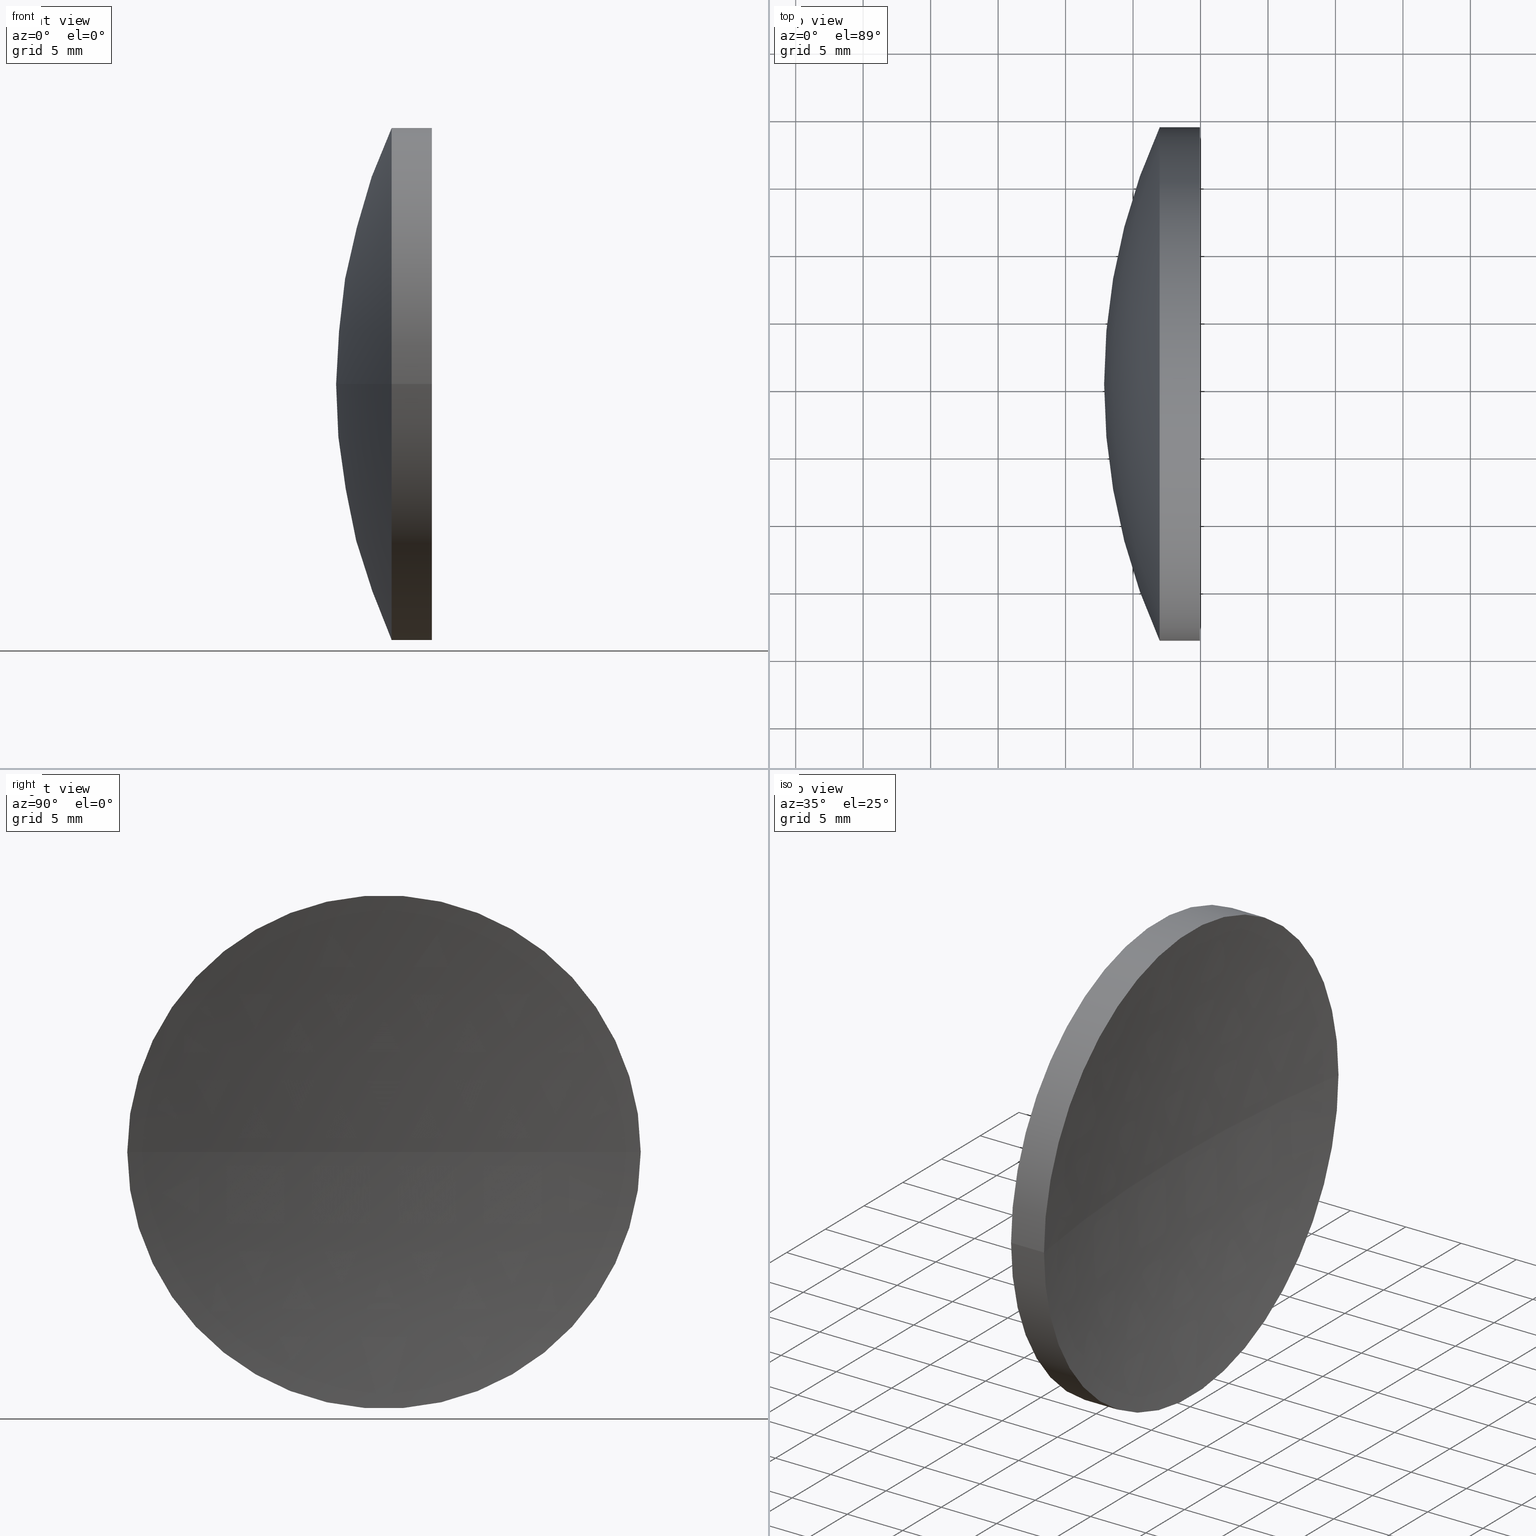
[diagram: canonical four-view strip — front | top / right | iso, engineering-drawing reading convention]
A machine part, canonical four-view strip (front | top / right | iso — engineering-drawing reading convention). The complete STEP part file that produces these views, byte-faithful:
ISO-10303-21;
HEADER;
FILE_DESCRIPTION (( 'STEP AP214' ),
    '1' );
FILE_NAME ('150015.STEP',
    '2019-07-04T07:50:48',
    ( '' ),
    ( '' ),
    'SwSTEP 2.0',
    'SolidWorks 2016',
    '' );
FILE_SCHEMA (( 'AUTOMOTIVE_DESIGN' ));
ENDSEC;

DATA;
#1 = PRODUCT ( '150015', '150015', '', ( #158 ) ) ;
#2 = CARTESIAN_POINT ( 'NONE',  ( 249.9554213155559500, 65.21684047094143500, 0.0000000000000000000 ) ) ;
#3 = AXIS2_PLACEMENT_3D ( 'NONE', #134, #34, #135 ) ;
#4 = DIRECTION ( 'NONE',  ( 8.496118506040342700E-032, -1.224646799147353200E-016, 1.000000000000000000 ) ) ;
#5 = EDGE_LOOP ( 'NONE', ( #130, #143, #44 ) ) ;
#6 = DIRECTION ( 'NONE',  ( -1.000000000000000000, -6.937607244762875000E-016, -0.0000000000000000000 ) ) ;
#7 = DIRECTION ( 'NONE',  ( -1.000000000000000000, -6.937607244762875000E-016, -0.0000000000000000000 ) ) ;
#8 = CARTESIAN_POINT ( 'NONE',  ( 168.8554213155557900, 65.21684047094032600, 0.0000000000000000000 ) ) ;
#9 = SURFACE_STYLE_FILL_AREA ( #156 ) ;
#10 = EDGE_CURVE ( 'NONE', #68, #155, #79, .T. ) ;
#11 =( NAMED_UNIT ( * ) SI_UNIT ( $, .STERADIAN. ) SOLID_ANGLE_UNIT ( ) );
#12 = ORIENTED_EDGE ( 'NONE', *, *, #160, .T. ) ;
#13 = DIRECTION ( 'NONE',  ( 1.000000000000000000, 0.0000000000000000000, 0.0000000000000000000 ) ) ;
#14 = VECTOR ( 'NONE', #106, 1000.000000000000000 ) ;
#15 = AXIS2_PLACEMENT_3D ( 'NONE', #80, #154, #108 ) ;
#16 = FACE_OUTER_BOUND ( 'NONE', #124, .T. ) ;
#17 = AXIS2_PLACEMENT_3D ( 'NONE', #104, #180, #55 ) ;
#18 = CARTESIAN_POINT ( 'NONE',  ( 129.9541739262057300, 65.21684047094034000, 0.0000000000000000000 ) ) ;
#19 = CLOSED_SHELL ( 'NONE', ( #63, #36, #38, #123, #65, #49 ) ) ;
#20 = FILL_AREA_STYLE_COLOUR ( '', #76 ) ;
#21 =( NAMED_UNIT ( * ) SI_UNIT ( $, .STERADIAN. ) SOLID_ANGLE_UNIT ( ) );
#22 = CIRCLE ( 'NONE', #62, 46.00000000000000000 ) ;
#23 = SURFACE_STYLE_USAGE ( .BOTH. , #119 ) ;
#24 =( NAMED_UNIT ( * ) PLANE_ANGLE_UNIT ( ) SI_UNIT ( $, .RADIAN. ) );
#25 = EDGE_LOOP ( 'NONE', ( #112, #162, #60 ) ) ;
#26 = APPLICATION_PROTOCOL_DEFINITION ( 'draft international standard', 'automotive_design', 1998, #64 ) ;
#27 = AXIS2_PLACEMENT_3D ( 'NONE', #18, #178, #146 ) ;
#28 = ORIENTED_EDGE ( 'NONE', *, *, #144, .T. ) ;
#29 = ORIENTED_EDGE ( 'NONE', *, *, #89, .F. ) ;
#30 = CARTESIAN_POINT ( 'NONE',  ( 129.9541739262057300, 84.24184047094027500, 2.329890535377707400E-015 ) ) ;
#31 = ORIENTED_EDGE ( 'NONE', *, *, #48, .F. ) ;
#32 = DIRECTION ( 'NONE',  ( -0.0000000000000000000, 0.0000000000000000000, 1.000000000000000000 ) ) ;
#33 = PRODUCT_DEFINITION_SHAPE ( 'NONE', 'NONE',  #53 ) ;
#34 = DIRECTION ( 'NONE',  ( -0.0000000000000000000, 0.0000000000000000000, 1.000000000000000000 ) ) ;
#35 = CARTESIAN_POINT ( 'NONE',  ( 249.9554213155559500, 65.21684047094143500, 0.0000000000000000000 ) ) ;
#36 = ADVANCED_FACE ( 'NONE', ( #78 ), #183, .T. ) ;
#37 = AXIS2_PLACEMENT_3D ( 'NONE', #2, #32, #58 ) ;
#38 = ADVANCED_FACE ( 'NONE', ( #159 ), #114, .F. ) ;
#39 = EDGE_LOOP ( 'NONE', ( #148, #168, #28, #103 ) ) ;
#40 = VERTEX_POINT ( 'NONE', #30 ) ;
#41 = AXIS2_PLACEMENT_3D ( 'NONE', #166, #151, #133 ) ;
#42 = DIRECTION ( 'NONE',  ( -0.0000000000000000000, 0.0000000000000000000, -1.000000000000000000 ) ) ;
#43 = PRESENTATION_LAYER_ASSIGNMENT (  '', '', ( #56 ) ) ;
#44 = ORIENTED_EDGE ( 'NONE', *, *, #89, .T. ) ;
#45 = DIRECTION ( 'NONE',  ( -1.000000000000000000, 0.0000000000000000000, 0.0000000000000000000 ) ) ;
#46 = CARTESIAN_POINT ( 'NONE',  ( 126.9740486661308800, 84.24184047094033200, 2.329890535377838700E-015 ) ) ;
#47 =( LENGTH_UNIT ( ) NAMED_UNIT ( * ) SI_UNIT ( .MILLI., .METRE. ) );
#48 = EDGE_CURVE ( 'NONE', #40, #175, #50, .T. ) ;
#49 = ADVANCED_FACE ( 'NONE', ( #192 ), #173, .T. ) ;
#50 = CIRCLE ( 'NONE', #27, 19.02499999999995900 ) ;
#51 = AXIS2_PLACEMENT_3D ( 'NONE', #82, #93, #182 ) ;
#52 = ORIENTED_EDGE ( 'NONE', *, *, #88, .T. ) ;
#53 = PRODUCT_DEFINITION ( 'δ֪', '', #139, #97 ) ;
#54 = SPHERICAL_SURFACE ( 'NONE', #128, 45.99999999999999300 ) ;
#55 = DIRECTION ( 'NONE',  ( 7.294500818824955000E-016, -1.000000000000000000, 0.0000000000000000000 ) ) ;
#56 = STYLED_ITEM ( 'NONE', ( #147 ), #167 ) ;
#57 = ORIENTED_EDGE ( 'NONE', *, *, #10, .F. ) ;
#58 = DIRECTION ( 'NONE',  ( 6.853228547068869400E-016, -1.000000000000000000, 0.0000000000000000000 ) ) ;
#59 = CARTESIAN_POINT ( 'NONE',  ( 126.9740486661308800, 65.21684047094034000, 0.0000000000000000000 ) ) ;
#60 = ORIENTED_EDGE ( 'NONE', *, *, #140, .T. ) ;
#61 = CARTESIAN_POINT ( 'NONE',  ( 122.8554213155558000, 65.21684047094029800, 0.0000000000000000000 ) ) ;
#62 = AXIS2_PLACEMENT_3D ( 'NONE', #8, #153, #96 ) ;
#63 = ADVANCED_FACE ( 'NONE', ( #16 ), #54, .T. ) ;
#64 = APPLICATION_CONTEXT ( 'automotive_design' ) ;
#65 = ADVANCED_FACE ( 'NONE', ( #126 ), #71, .T. ) ;
#66 = AXIS2_PLACEMENT_3D ( 'NONE', #35, #4, #95 ) ;
#67 = FACE_OUTER_BOUND ( 'NONE', #5, .T. ) ;
#68 = VERTEX_POINT ( 'NONE', #186 ) ;
#69 = EDGE_CURVE ( 'NONE', #68, #125, #22, .T. ) ;
#70 =( GEOMETRIC_REPRESENTATION_CONTEXT ( 3 ) GLOBAL_UNCERTAINTY_ASSIGNED_CONTEXT ( ( #189 ) ) GLOBAL_UNIT_ASSIGNED_CONTEXT ( ( #83, #24, #11 ) ) REPRESENTATION_CONTEXT ( 'NONE', 'WORKASPACE' ) );
#71 = CYLINDRICAL_SURFACE ( 'NONE', #41, 19.02499999999997400 ) ;
#72 = MECHANICAL_DESIGN_GEOMETRIC_PRESENTATION_REPRESENTATION (  '', ( #56 ), #70 ) ;
#73 = DIRECTION ( 'NONE',  ( 0.0000000000000000000, -1.000000000000000000, 0.0000000000000000000 ) ) ;
#74 = ORIENTED_EDGE ( 'NONE', *, *, #69, .T. ) ;
#75 = STYLED_ITEM ( 'NONE', ( #132 ), #113 ) ;
#76 = COLOUR_RGB ( '',1.000000000000000000, 1.000000000000000000, 1.000000000000000000 ) ;
#77 =( NAMED_UNIT ( * ) PLANE_ANGLE_UNIT ( ) SI_UNIT ( $, .RADIAN. ) );
#78 = FACE_OUTER_BOUND ( 'NONE', #98, .T. ) ;
#79 = CIRCLE ( 'NONE', #179, 19.02499999999999500 ) ;
#80 = CARTESIAN_POINT ( 'NONE',  ( 249.9554213155559500, 65.21684047094143500, 0.0000000000000000000 ) ) ;
#81 = CARTESIAN_POINT ( 'NONE',  ( 115.9444912979631800, 46.19184047094035600, 0.0000000000000000000 ) ) ;
#82 = CARTESIAN_POINT ( 'NONE',  ( 129.9541739262057300, 65.21684047094034000, 0.0000000000000000000 ) ) ;
#83 =( LENGTH_UNIT ( ) NAMED_UNIT ( * ) SI_UNIT ( .MILLI., .METRE. ) );
#84 = AXIS2_PLACEMENT_3D ( 'NONE', #120, #92, #45 ) ;
#85 = ORIENTED_EDGE ( 'NONE', *, *, #171, .T. ) ;
#86 = UNCERTAINTY_MEASURE_WITH_UNIT (LENGTH_MEASURE( 1.000000000000000100E-005 ), #47, 'distance_accuracy_value', 'NONE');
#87 = EDGE_LOOP ( 'NONE', ( #31, #85, #29 ) ) ;
#88 = EDGE_CURVE ( 'NONE', #175, #40, #94, .T. ) ;
#89 = EDGE_CURVE ( 'NONE', #175, #107, #181, .T. ) ;
#90 = AXIS2_PLACEMENT_3D ( 'NONE', #59, #7, #185 ) ;
#91 =( LENGTH_UNIT ( ) NAMED_UNIT ( * ) SI_UNIT ( .MILLI., .METRE. ) );
#92 = DIRECTION ( 'NONE',  ( 0.0000000000000000000, 0.0000000000000000000, -1.000000000000000000 ) ) ;
#93 = DIRECTION ( 'NONE',  ( -1.000000000000000000, -6.937607244762875000E-016, -0.0000000000000000000 ) ) ;
#94 = CIRCLE ( 'NONE', #51, 19.02499999999995900 ) ;
#95 = DIRECTION ( 'NONE',  ( 0.0000000000000000000, -1.000000000000000000, -1.224646799147353000E-016 ) ) ;
#96 = DIRECTION ( 'NONE',  ( 0.0000000000000000000, 1.000000000000000000, 1.224646799147353000E-016 ) ) ;
#97 = PRODUCT_DEFINITION_CONTEXT ( 'detailed design', #64, 'design' ) ;
#98 = EDGE_LOOP ( 'NONE', ( #52, #172, #57, #101 ) ) ;
#99 = UNCERTAINTY_MEASURE_WITH_UNIT (LENGTH_MEASURE( 1.000000000000000100E-005 ), #91, 'distance_accuracy_value', 'NONE');
#100 = EDGE_CURVE ( 'NONE', #40, #155, #176, .T. ) ;
#101 = ORIENTED_EDGE ( 'NONE', *, *, #144, .F. ) ;
#102 = LINE ( 'NONE', #81, #14 ) ;
#103 = ORIENTED_EDGE ( 'NONE', *, *, #160, .F. ) ;
#104 = CARTESIAN_POINT ( 'NONE',  ( 115.9444912979631700, 65.21684047094032600, 0.0000000000000000000 ) ) ;
#105 = CARTESIAN_POINT ( 'NONE',  ( 168.8554213155557900, 65.21684047094032600, 0.0000000000000000000 ) ) ;
#106 = DIRECTION ( 'NONE',  ( -1.000000000000000000, -6.937607244762875000E-016, -0.0000000000000000000 ) ) ;
#107 = VERTEX_POINT ( 'NONE', #109 ) ;
#108 = DIRECTION ( 'NONE',  ( 6.853228547068869400E-016, -1.000000000000000000, 0.0000000000000000000 ) ) ;
#109 = CARTESIAN_POINT ( 'NONE',  ( 128.4554213155559800, 65.21684047094133500, 0.0000000000000000000 ) ) ;
#110 = SURFACE_STYLE_USAGE ( .BOTH. , #141 ) ;
#111 = SURFACE_STYLE_FILL_AREA ( #118 ) ;
#112 = ORIENTED_EDGE ( 'NONE', *, *, #69, .F. ) ;
#113 = MANIFOLD_SOLID_BREP ( '��ת1', #19 ) ;
#114 = SPHERICAL_SURFACE ( 'NONE', #37, 121.4999999999999700 ) ;
#115 = CARTESIAN_POINT ( 'NONE',  ( 168.8554213155557900, 65.21684047094032600, 0.0000000000000000000 ) ) ;
#116 =( GEOMETRIC_REPRESENTATION_CONTEXT ( 3 ) GLOBAL_UNCERTAINTY_ASSIGNED_CONTEXT ( ( #86 ) ) GLOBAL_UNIT_ASSIGNED_CONTEXT ( ( #47, #77, #170 ) ) REPRESENTATION_CONTEXT ( 'NONE', 'WORKASPACE' ) );
#117 = CIRCLE ( 'NONE', #3, 45.99999999999998600 ) ;
#118 = FILL_AREA_STYLE ('',( #20 ) ) ;
#119 = SURFACE_SIDE_STYLE ('',( #111 ) ) ;
#120 = CARTESIAN_POINT ( 'NONE',  ( 249.9554213155559500, 65.21684047094143500, 0.0000000000000000000 ) ) ;
#121 = CARTESIAN_POINT ( 'NONE',  ( 115.9444912979631500, 84.24184047094030300, 2.329890535377836000E-015 ) ) ;
#122 = CIRCLE ( 'NONE', #90, 19.02499999999999500 ) ;
#123 = ADVANCED_FACE ( 'NONE', ( #67 ), #164, .F. ) ;
#124 = EDGE_LOOP ( 'NONE', ( #12, #74, #145 ) ) ;
#125 = VERTEX_POINT ( 'NONE', #61 ) ;
#126 = FACE_OUTER_BOUND ( 'NONE', #39, .T. ) ;
#127 = CARTESIAN_POINT ( 'NONE',  ( 126.9740486661308800, 65.21684047094034000, 0.0000000000000000000 ) ) ;
#128 = AXIS2_PLACEMENT_3D ( 'NONE', #115, #42, #149 ) ;
#129 = DIRECTION ( 'NONE',  ( -6.033820786006285700E-016, 1.000000000000000000, 0.0000000000000000000 ) ) ;
#130 = ORIENTED_EDGE ( 'NONE', *, *, #171, .F. ) ;
#131 = DIRECTION ( 'NONE',  ( -0.0000000000000000000, 0.0000000000000000000, -1.000000000000000000 ) ) ;
#132 = PRESENTATION_STYLE_ASSIGNMENT (( #23 ) ) ;
#133 = DIRECTION ( 'NONE',  ( 7.294500818824955000E-016, -1.000000000000000000, 0.0000000000000000000 ) ) ;
#134 = CARTESIAN_POINT ( 'NONE',  ( 168.8554213155557900, 65.21684047094032600, 0.0000000000000000000 ) ) ;
#135 = DIRECTION ( 'NONE',  ( 1.000000000000000000, 0.0000000000000000000, 0.0000000000000000000 ) ) ;
#136 = CARTESIAN_POINT ( 'NONE',  ( 0.0000000000000000000, 0.0000000000000000000, 0.0000000000000000000 ) ) ;
#137 = FILL_AREA_STYLE_COLOUR ( '', #142 ) ;
#138 = DIRECTION ( 'NONE',  ( 0.0000000000000000000, 0.0000000000000000000, 1.000000000000000000 ) ) ;
#139 = PRODUCT_DEFINITION_FORMATION_WITH_SPECIFIED_SOURCE ( '�κ�', '', #1, .NOT_KNOWN. ) ;
#140 = EDGE_CURVE ( 'NONE', #155, #125, #117, .T. ) ;
#141 = SURFACE_SIDE_STYLE ('',( #9 ) ) ;
#142 = COLOUR_RGB ( '',1.000000000000000000, 1.000000000000000000, 1.000000000000000000 ) ;
#143 = ORIENTED_EDGE ( 'NONE', *, *, #88, .F. ) ;
#144 = EDGE_CURVE ( 'NONE', #175, #68, #102, .T. ) ;
#145 = ORIENTED_EDGE ( 'NONE', *, *, #140, .F. ) ;
#146 = DIRECTION ( 'NONE',  ( 0.0000000000000000000, -1.000000000000000000, 0.0000000000000000000 ) ) ;
#147 = PRESENTATION_STYLE_ASSIGNMENT (( #110 ) ) ;
#148 = ORIENTED_EDGE ( 'NONE', *, *, #100, .F. ) ;
#149 = DIRECTION ( 'NONE',  ( -6.033820786006285700E-016, 1.000000000000000000, 0.0000000000000000000 ) ) ;
#150 = VECTOR ( 'NONE', #6, 1000.000000000000000 ) ;
#151 = DIRECTION ( 'NONE',  ( -1.000000000000000000, -6.937607244762875000E-016, -0.0000000000000000000 ) ) ;
#152 =( NAMED_UNIT ( * ) PLANE_ANGLE_UNIT ( ) SI_UNIT ( $, .RADIAN. ) );
#153 = DIRECTION ( 'NONE',  ( -8.496118506040342700E-032, 1.224646799147353200E-016, -1.000000000000000000 ) ) ;
#154 = DIRECTION ( 'NONE',  ( -0.0000000000000000000, 0.0000000000000000000, 1.000000000000000000 ) ) ;
#155 = VERTEX_POINT ( 'NONE', #46 ) ;
#156 = FILL_AREA_STYLE ('',( #137 ) ) ;
#157 = PRESENTATION_LAYER_ASSIGNMENT (  '', '', ( #75 ) ) ;
#158 = PRODUCT_CONTEXT ( 'NONE', #169, 'mechanical' ) ;
#159 = FACE_OUTER_BOUND ( 'NONE', #87, .T. ) ;
#160 = EDGE_CURVE ( 'NONE', #155, #68, #122, .T. ) ;
#161 = AXIS2_PLACEMENT_3D ( 'NONE', #136, #138, #13 ) ;
#162 = ORIENTED_EDGE ( 'NONE', *, *, #10, .T. ) ;
#163 = DIRECTION ( 'NONE',  ( -1.000000000000000000, -6.937607244762875000E-016, -0.0000000000000000000 ) ) ;
#164 = SPHERICAL_SURFACE ( 'NONE', #15, 121.4999999999999700 ) ;
#165 = MECHANICAL_DESIGN_GEOMETRIC_PRESENTATION_REPRESENTATION (  '', ( #75 ), #188 ) ;
#166 = CARTESIAN_POINT ( 'NONE',  ( 115.9444912979631700, 65.21684047094032600, 0.0000000000000000000 ) ) ;
#167 = ADVANCED_BREP_SHAPE_REPRESENTATION ( '150015', ( #113, #161 ), #116 ) ;
#168 = ORIENTED_EDGE ( 'NONE', *, *, #48, .T. ) ;
#169 = APPLICATION_CONTEXT ( 'automotive_design' ) ;
#170 =( NAMED_UNIT ( * ) SI_UNIT ( $, .STERADIAN. ) SOLID_ANGLE_UNIT ( ) );
#171 = EDGE_CURVE ( 'NONE', #40, #107, #191, .T. ) ;
#172 = ORIENTED_EDGE ( 'NONE', *, *, #100, .T. ) ;
#173 = SPHERICAL_SURFACE ( 'NONE', #174, 45.99999999999999300 ) ;
#174 = AXIS2_PLACEMENT_3D ( 'NONE', #105, #131, #129 ) ;
#175 = VERTEX_POINT ( 'NONE', #184 ) ;
#176 = LINE ( 'NONE', #121, #150 ) ;
#177 = PRODUCT_RELATED_PRODUCT_CATEGORY ( 'part', '', ( #1 ) ) ;
#178 = DIRECTION ( 'NONE',  ( -1.000000000000000000, -6.937607244762875000E-016, -0.0000000000000000000 ) ) ;
#179 = AXIS2_PLACEMENT_3D ( 'NONE', #127, #163, #73 ) ;
#180 = DIRECTION ( 'NONE',  ( -1.000000000000000000, -6.937607244762875000E-016, -0.0000000000000000000 ) ) ;
#181 = CIRCLE ( 'NONE', #84, 121.4999999999999700 ) ;
#182 = DIRECTION ( 'NONE',  ( 0.0000000000000000000, -1.000000000000000000, 0.0000000000000000000 ) ) ;
#183 = CYLINDRICAL_SURFACE ( 'NONE', #17, 19.02499999999997400 ) ;
#184 = CARTESIAN_POINT ( 'NONE',  ( 129.9541739262057300, 46.19184047094142200, 0.0000000000000000000 ) ) ;
#185 = DIRECTION ( 'NONE',  ( 0.0000000000000000000, -1.000000000000000000, 0.0000000000000000000 ) ) ;
#186 = CARTESIAN_POINT ( 'NONE',  ( 126.9740486661308800, 46.19184047094034900, 0.0000000000000000000 ) ) ;
#187 = SHAPE_DEFINITION_REPRESENTATION ( #33, #167 ) ;
#188 =( GEOMETRIC_REPRESENTATION_CONTEXT ( 3 ) GLOBAL_UNCERTAINTY_ASSIGNED_CONTEXT ( ( #99 ) ) GLOBAL_UNIT_ASSIGNED_CONTEXT ( ( #91, #152, #21 ) ) REPRESENTATION_CONTEXT ( 'NONE', 'WORKASPACE' ) );
#189 = UNCERTAINTY_MEASURE_WITH_UNIT (LENGTH_MEASURE( 1.000000000000000100E-005 ), #83, 'distance_accuracy_value', 'NONE');
#190 = APPLICATION_PROTOCOL_DEFINITION ( 'draft international standard', 'automotive_design', 1998, #169 ) ;
#191 = CIRCLE ( 'NONE', #66, 121.4999999999999700 ) ;
#192 = FACE_OUTER_BOUND ( 'NONE', #25, .T. ) ;
ENDSEC;
END-ISO-10303-21;
